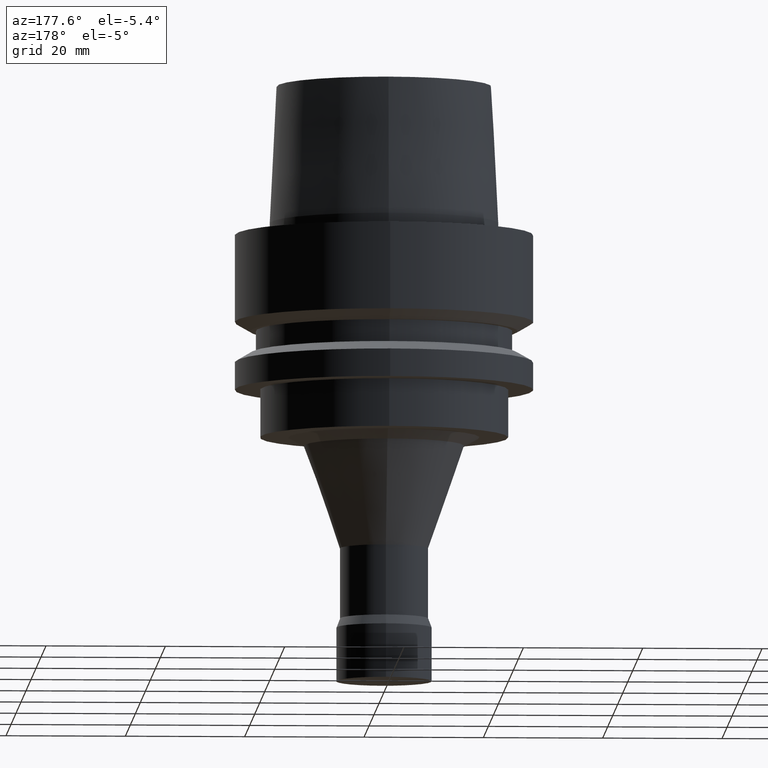
[diagram: clean part render]
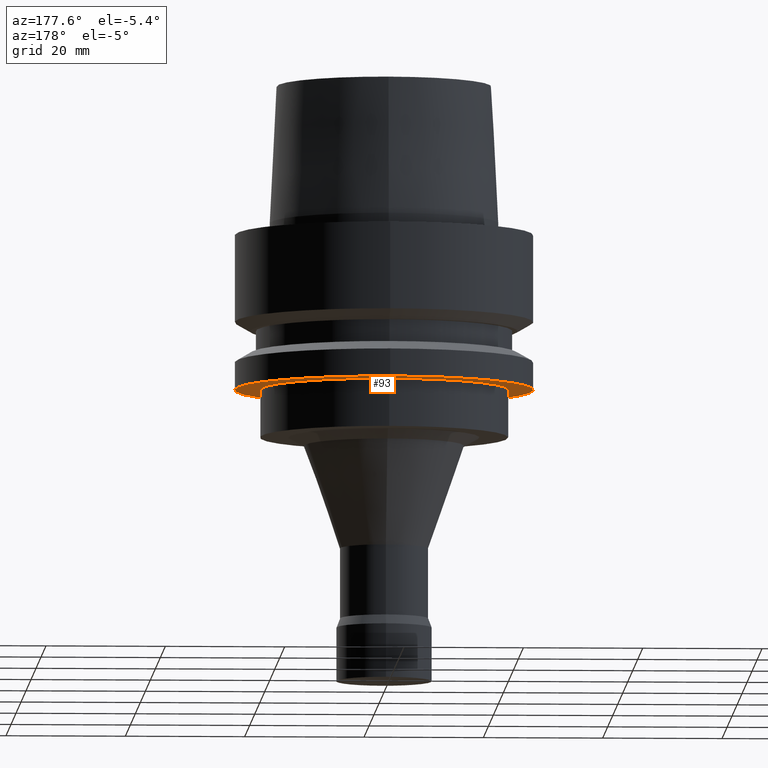
[diagram: same view with one face highlighted and labeled with its STEP entity id]
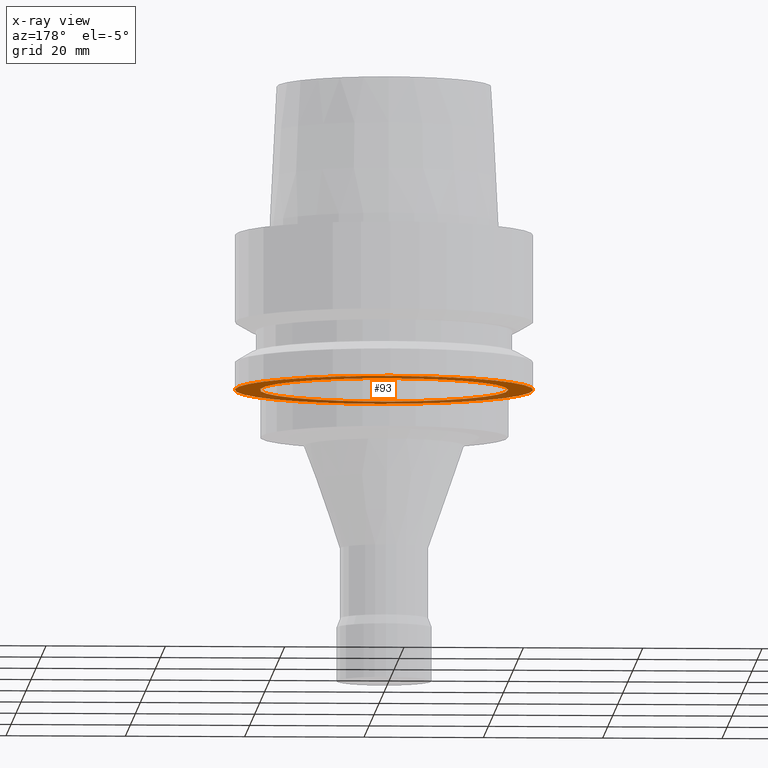
[diagram: x-ray of the same camera — body ghosted, the highlighted face saturated]
A machine part, auxiliary view. The second image highlights one B-rep face of the part: STEP entity #93.
The next image is the same camera in x-ray: the body ghosted, the highlighted face saturated — about 35% of this face is hidden behind the body in this view.
In plain terms, the highlighted planar face has unit normal (0, 0, -1).
Its self-contained STEP definition (entity closure, byte-faithful):
#93=ADVANCED_FACE('',(#148,#149),#150,.T.);
#148=FACE_BOUND('',#206,.T.);
#149=FACE_OUTER_BOUND('',#207,.T.);
#150=PLANE('',#208);
#206=EDGE_LOOP('',(#300));
#207=EDGE_LOOP('',(#301));
#208=AXIS2_PLACEMENT_3D('',#302,#303,#304);
#300=ORIENTED_EDGE('',*,*,#328,.F.);
#301=ORIENTED_EDGE('',*,*,#327,.T.);
#302=CARTESIAN_POINT('',(1.59204083889156E-015,22.9,-26.0));
#303=DIRECTION('',(6.12323399573677E-017,1.22464679914735E-016,-1.0));
#304=DIRECTION('',(-1.23259516440783E-032,1.0,1.22464679914735E-016));
#327=EDGE_CURVE('',#363,#363,#364,.T.);
#328=EDGE_CURVE('',#365,#365,#366,.T.);
#363=VERTEX_POINT('',#401);
#364=CIRCLE('',#402,25.0);
#365=VERTEX_POINT('',#403);
#366=CIRCLE('',#404,20.8);
#401=CARTESIAN_POINT('',(1.59204083889156E-015,25.0,-26.0));
#402=AXIS2_PLACEMENT_3D('',#456,#457,#458);
#403=CARTESIAN_POINT('',(1.59204083889156E-015,20.8,-26.0));
#404=AXIS2_PLACEMENT_3D('',#459,#460,#461);
#456=CARTESIAN_POINT('',(1.59204083889156E-015,3.18408167778312E-015,-26.0));
#457=DIRECTION('',(6.12323399573677E-017,1.22464679914735E-016,-1.0));
#458=DIRECTION('',(-1.23259516440783E-032,1.0,1.22464679914735E-016));
#459=CARTESIAN_POINT('',(1.59204083889156E-015,3.18408167778312E-015,-26.0));
#460=DIRECTION('',(6.12323399573677E-017,1.22464679914735E-016,-1.0));
#461=DIRECTION('',(-1.23259516440783E-032,1.0,1.22464679914735E-016));